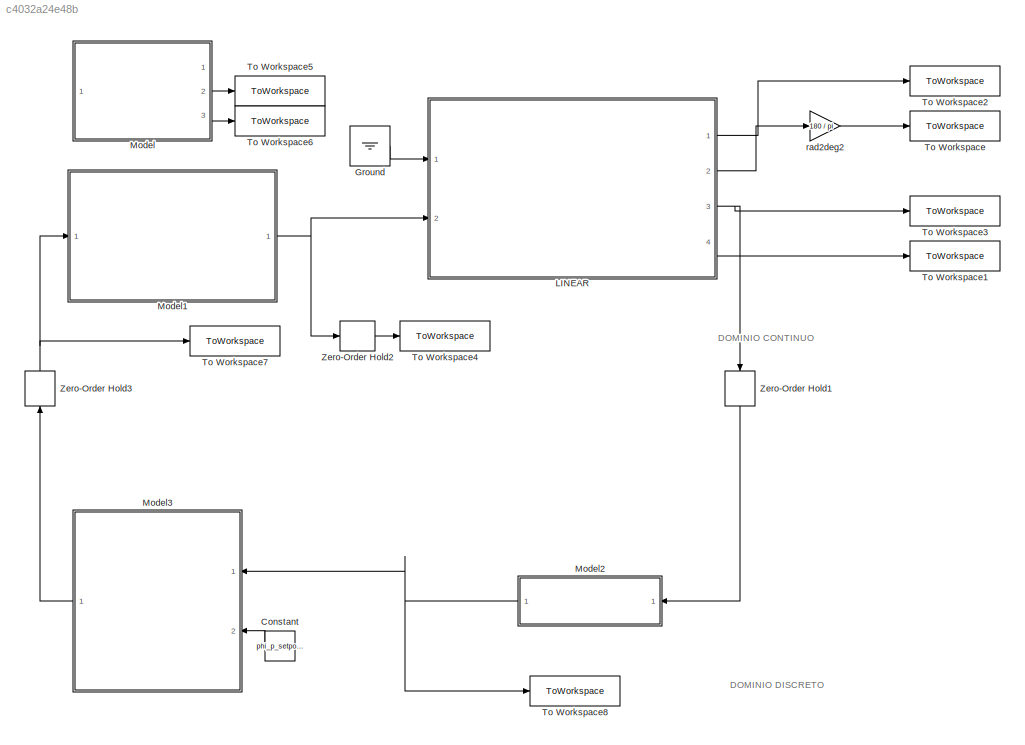
MODEL slx_c4032a24e48b
KIND model
CONFIG AbsTol = auto
CONFIG EnableMultiTasking = off
CONFIG FixedStep = Ts
CONFIG MaxStep = auto
CONFIG MinStep = auto
CONFIG RelTol = 1e-3
CONFIG SampleTimeConstraint = Unconstrained
CONFIG Solver = VariableStepAuto
CONFIG SolverName = VariableStepAuto
CONFIG StartTime = 0.0
CONFIG StopTime = t_end
BLOCK [Constant] Constant
  Value = phi_p_setpoint
BLOCK [Ground] Ground
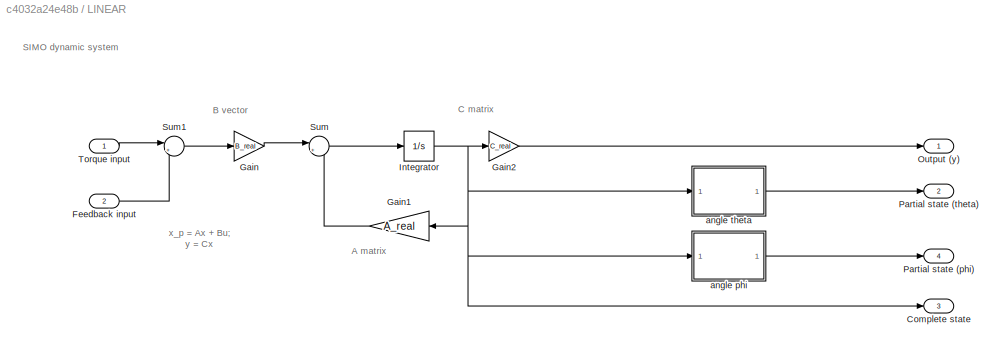
BLOCK [SubSystem] LINEAR
  Ports = [2, 4]
  RequestExecContextInheritance = off
BLOCK [Outport] LINEAR/Complete state 
  IconDisplay = Port number
  Port = 3
BLOCK [Inport] LINEAR/Feedback input
  IconDisplay = Port number
  Port = 2
BLOCK [Gain] LINEAR/Gain
  Gain = B_real
  Multiplication = Matrix(K*u) (u vector)
  OutDataTypeStr = Inherit: Inherit via internal rule
  ParamDataTypeStr = Inherit: Inherit via internal rule
  SaturateOnIntegerOverflow = off
BLOCK [Gain] LINEAR/Gain1
  Gain = A_real
  Multiplication = Matrix(K*u) (u vector)
  OutDataTypeStr = Inherit: Inherit via internal rule
  ParamDataTypeStr = Inherit: Inherit via internal rule
  SaturateOnIntegerOverflow = off
BLOCK [Gain] LINEAR/Gain2
  Gain = C_real
  Multiplication = Matrix(K*u) (u vector)
  OutDataTypeStr = Inherit: Inherit via internal rule
  ParamDataTypeStr = Inherit: Inherit via internal rule
  SaturateOnIntegerOverflow = off
BLOCK [Integrator] LINEAR/Integrator
  InitialCondition = x_0
  Ports = [1, 1]
BLOCK [Outport] LINEAR/Output (y)
  IconDisplay = Port number
BLOCK [Outport] LINEAR/Partial state (phi)
  IconDisplay = Port number
  Port = 4
BLOCK [Outport] LINEAR/Partial state (theta)
  IconDisplay = Port number
  Port = 2
BLOCK [Sum] LINEAR/Sum
  IconShape = round
  InputSameDT = off
  Inputs = |++
  OutDataTypeStr = Inherit: Inherit via internal rule
  Ports = [2, 1]
  SaturateOnIntegerOverflow = off
BLOCK [Sum] LINEAR/Sum1
  IconShape = round
  InputSameDT = off
  Inputs = |++
  OutDataTypeStr = Inherit: Inherit via internal rule
  Ports = [2, 1]
  SaturateOnIntegerOverflow = off
BLOCK [Inport] LINEAR/Torque input
  IconDisplay = Port number
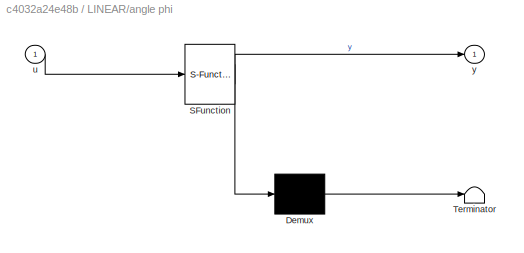
BLOCK [SubSystem] LINEAR/angle phi
  ErrorFcn = Stateflow.Translate.translate
  PermitHierarchicalResolution = ExplicitOnly
  Ports = [1, 1]
  RequestExecContextInheritance = off
  SFBlockType = MATLAB Function
  TreatAsAtomicUnit = on
BLOCK [Demux] LINEAR/angle phi/ Demux 
  Outputs = 1
  Ports = [1, 1]
BLOCK [S-Function] LINEAR/angle phi/ SFunction 
  EnableBusSupport = on
  FunctionName = sf_sfun
  PortCounts = [1 2]
  Ports = [1, 2]
  SFcnIsStateOwnerBlock = off
  SFunctionDeploymentMode = off
  Tag = Stateflow S-Function 1
BLOCK [Terminator] LINEAR/angle phi/ Terminator 
BLOCK [Inport] LINEAR/angle phi/u
  IconDisplay = Port number
BLOCK [Outport] LINEAR/angle phi/y
  IconDisplay = Port number
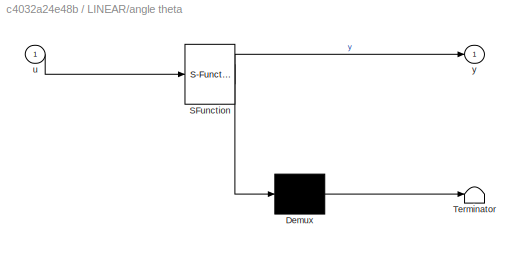
BLOCK [SubSystem] LINEAR/angle theta
  ErrorFcn = Stateflow.Translate.translate
  PermitHierarchicalResolution = ExplicitOnly
  Ports = [1, 1]
  RequestExecContextInheritance = off
  SFBlockType = MATLAB Function
  TreatAsAtomicUnit = on
BLOCK [Demux] LINEAR/angle theta/ Demux 
  Outputs = 1
  Ports = [1, 1]
BLOCK [S-Function] LINEAR/angle theta/ SFunction 
  EnableBusSupport = on
  FunctionName = sf_sfun
  PortCounts = [1 2]
  Ports = [1, 2]
  SFcnIsStateOwnerBlock = off
  SFunctionDeploymentMode = off
  Tag = Stateflow S-Function 2
BLOCK [Terminator] LINEAR/angle theta/ Terminator 
BLOCK [Inport] LINEAR/angle theta/u
  IconDisplay = Port number
BLOCK [Outport] LINEAR/angle theta/y
  IconDisplay = Port number
BLOCK [ModelReference] Model
  Commented = on
  ModelNameDialog = MotorModelDiscrete.slx
  ModelReferenceVersion = 1.14
  Ports = [1, 3]
BLOCK [ModelReference] Model1
  ModelNameDialog = MotorModelContinuos.slx
  ModelReferenceVersion = 1.24
  Ports = [1, 1]
BLOCK [ModelReference] Model2
  ModelNameDialog = sensor_piffo.slx
  ModelReferenceVersion = 1.14
  Ports = [1, 1]
BLOCK [ModelReference] Model3
  ModelNameDialog = controller.slx
  ModelReferenceVersion = 1.20
  Ports = [2, 1]
BLOCK [ToWorkspace] To Workspace
  FixptAsFi = on
  MaxDataPoints = inf
  Ports = [1]
  SampleTime = -1
  VariableName = theta_Clamped
BLOCK [ToWorkspace] To Workspace1
  FixptAsFi = on
  MaxDataPoints = inf
  Ports = [1]
  SampleTime = -1
  VariableName = phi_Clamped
BLOCK [ToWorkspace] To Workspace2
  FixptAsFi = on
  MaxDataPoints = inf
  Ports = [1]
  SampleTime = -1
  VariableName = Output
BLOCK [ToWorkspace] To Workspace3
  FixptAsFi = on
  MaxDataPoints = inf
  Ports = [1]
  SampleTime = -1
  VariableName = completeState
BLOCK [ToWorkspace] To Workspace4
  FixptAsFi = on
  MaxDataPoints = inf
  Ports = [1]
  SampleTime = -1
  VariableName = actualTorque
BLOCK [ToWorkspace] To Workspace5
  Commented = on
  FixptAsFi = on
  MaxDataPoints = inf
  Ports = [1]
  SampleTime = -1
  VariableName = actualCurrent
BLOCK [ToWorkspace] To Workspace6
  Commented = on
  FixptAsFi = on
  MaxDataPoints = inf
  Ports = [1]
  SampleTime = -1
  VariableName = actualSpeed
BLOCK [ToWorkspace] To Workspace7
  FixptAsFi = on
  MaxDataPoints = inf
  Ports = [1]
  SampleTime = -1
  VariableName = torqueRequested
BLOCK [ToWorkspace] To Workspace8
  FixptAsFi = on
  MaxDataPoints = inf
  Ports = [1]
  SampleTime = -1
  VariableName = sensor_state
BLOCK [ZeroOrderHold] Zero-Order Hold1
  SampleTime = Ts
BLOCK [ZeroOrderHold] Zero-Order Hold2
  SampleTime = Ts
BLOCK [ZeroOrderHold] Zero-Order Hold3
  SampleTime = Ts
BLOCK [Gain] rad2deg2
  Gain = 180 / pi
  OutDataTypeStr = Inherit: Inherit via internal rule
  ParamDataTypeStr = Inherit: Inherit via internal rule
  SaturateOnIntegerOverflow = off
ANNOTATION (root): DOMINIO CONTINUO
ANNOTATION (root): DOMINIO DISCRETO
ANNOTATION LINEAR: SIMO dynamic system
ANNOTATION LINEAR: A matrix
ANNOTATION LINEAR: B vector
ANNOTATION LINEAR: C matrix
ANNOTATION LINEAR: x_p = Ax + Bu; y = Cx
LINE Constant:1 -> Model3:2
LINE Ground:1 -> LINEAR:1
LINE LINEAR/Feedback input:1 -> LINEAR/Sum1:2
LINE LINEAR/Gain1:1 -> LINEAR/Sum:2
LINE LINEAR/Gain2:1 -> LINEAR/Output (y):1
LINE LINEAR/Gain:1 -> LINEAR/Sum:1
NET LINEAR/Integrator:1 -> LINEAR/Complete state :1, LINEAR/Gain1:1, LINEAR/Gain2:1, LINEAR/angle phi:1, LINEAR/angle theta:1
LINE LINEAR/Sum1:1 -> LINEAR/Gain:1
LINE LINEAR/Sum:1 -> LINEAR/Integrator:1
LINE LINEAR/Torque input:1 -> LINEAR/Sum1:1
LINE LINEAR/angle phi:1 -> LINEAR/Partial state (phi):1
LINE LINEAR/angle theta:1 -> LINEAR/Partial state (theta):1
LINE LINEAR:1 -> To Workspace2:1
LINE LINEAR:2 -> rad2deg2:1
NET LINEAR:3 -> To Workspace3:1, Zero-Order Hold1:1
LINE LINEAR:4 -> To Workspace1:1
NET Model1:1 -> LINEAR:2, Zero-Order Hold2:1
NET Model2:1 -> Model3:1, To Workspace8:1
LINE Model3:1 -> Zero-Order Hold3:1
LINE Model:2 -> To Workspace5:1
LINE Model:3 -> To Workspace6:1
LINE Zero-Order Hold1:1 -> Model2:1
LINE Zero-Order Hold2:1 -> To Workspace4:1
NET Zero-Order Hold3:1 -> Model1:1, To Workspace7:1
LINE rad2deg2:1 -> To Workspace:1
note: NET lines group one-source signal fan-out (src -> all destinations, sorted); 1:1 wires keep LINE
CHART LINEAR/angle phi states=1 transitions=1
  STATE_LABEL 'eML_blk_kernel()'
  STATE_LABEL 'SCRIPT:\nfunction y = fcn(u)\n\n% if u(1) ~= 0\n%    u(1) = mod(u(1), 2 * pi); \n% end\n% \n% y = rad2deg(u(1));\ny = u(1);\n'
CHART LINEAR/angle theta states=1 transitions=1
  STATE_LABEL 'eML_blk_kernel()'
  STATE_LABEL 'SCRIPT:\nfunction y = fcn(u)\n\n% if u(3) ~= 0\n%    u(3) = mod(u(3), 2 * pi); \n% end\n% \n% \n% y = rad2deg(u(3));\ny = u(3);\n'
